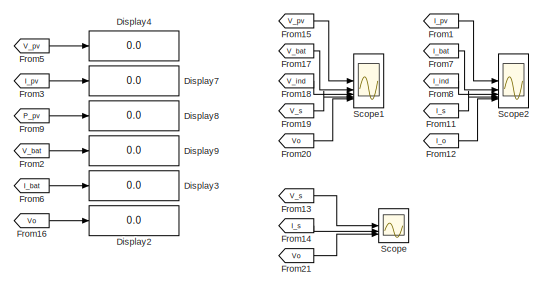
[diagram: root canvas - part 1/4, top right region]
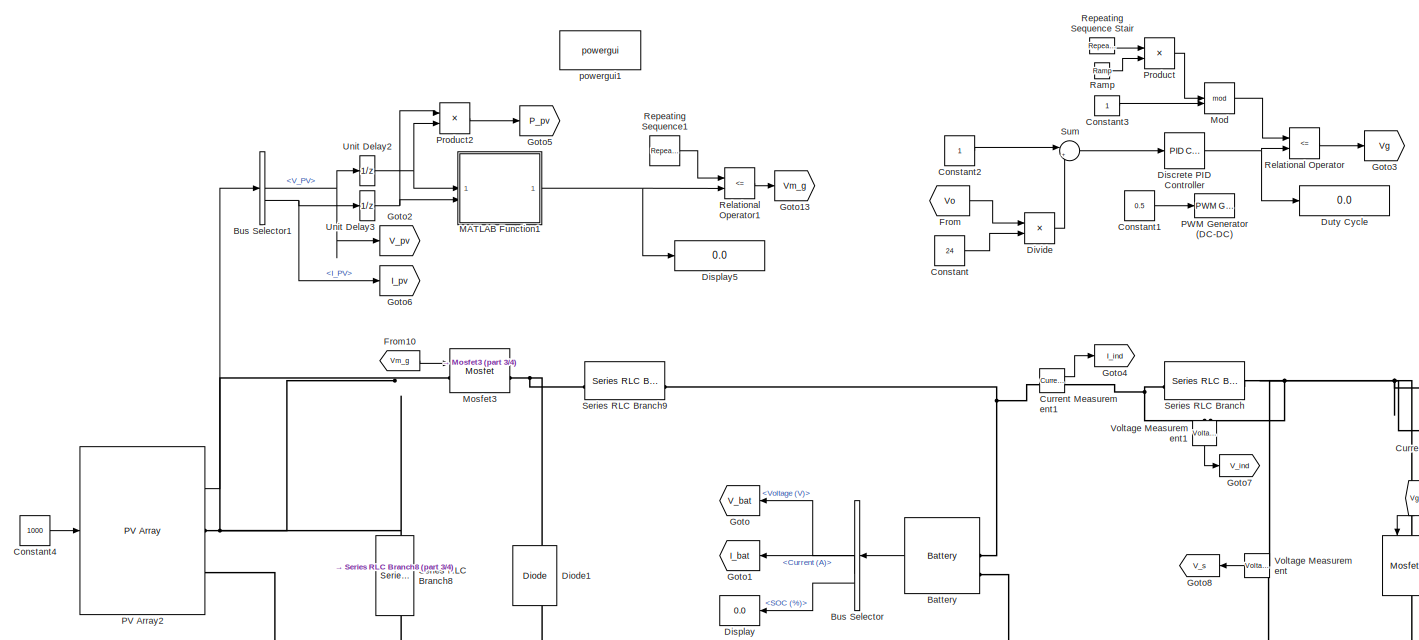
[diagram: root canvas - part 2/4, center side, full height]
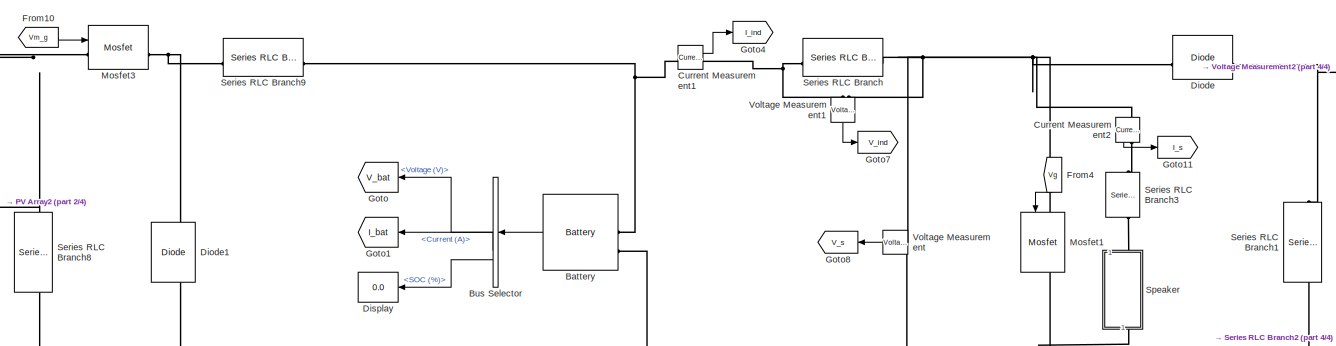
[diagram: root canvas - part 3/4, bottom center region]
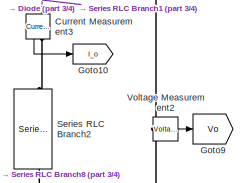
[diagram: root canvas - part 4/4, bottom right region]
MODEL slx_962ab6485103
KIND model
CONFIG AbsTol = auto
CONFIG EnableMultiTasking = off
CONFIG FixedStep = auto
CONFIG MaxStep = auto
CONFIG MinStep = auto
CONFIG RelTol = 1e-3
CONFIG SampleTimeConstraint = Unconstrained
CONFIG SolverName = VariableStepAuto
CONFIG StartTime = 0.0
CONFIG StopTime = 0.5
BLOCK [Reference] Battery  REF=spsBatteryLib/Battery
  SourceBlock = spsBatteryLib/Battery
  SourceType = Battery
BLOCK [BusSelector] Bus Selector
  NameLocation = top
  OutputSignals = Voltage (V),Current (A),SOC (%)
BLOCK [BusSelector] Bus Selector1
  OutputSignals = V_PV,I_PV
BLOCK [Constant] Constant
  Value = 24
BLOCK [Constant] Constant1
  Value = 0.5
BLOCK [Constant] Constant2
BLOCK [Constant] Constant3
  SampleTime = 1e-6
BLOCK [Constant] Constant4
  Value = 1000
BLOCK [Reference] Current Measurement1  REF=spsCurrentMeasurementLib/Current Measurement
  SourceBlock = spsCurrentMeasurementLib/Current Measurement
  SourceType = Current Measurement
  UserDataPersistent = on
BLOCK [Reference] Current Measurement2  REF=spsCurrentMeasurementLib/Current Measurement
  NameLocation = left
  SourceBlock = spsCurrentMeasurementLib/Current Measurement
  SourceType = Current Measurement
  UserDataPersistent = on
BLOCK [Reference] Current Measurement3  REF=spsCurrentMeasurementLib/Current Measurement
  NameLocation = left
  SourceBlock = spsCurrentMeasurementLib/Current Measurement
  SourceType = Current Measurement
  UserDataPersistent = on
BLOCK [Reference] Diode  REF=spsDiodeLib/Diode
  SourceBlock = spsDiodeLib/Diode
  SourceType = Diode
BLOCK [Reference] Diode1  REF=spsDiodeLib/Diode
  NameLocation = right
  SourceBlock = spsDiodeLib/Diode
  SourceType = Diode
BLOCK [Reference] Discrete PID Controller  REF=slpidlib/PID Controller
  SourceBlock = slpidlib/PID Controller
  SourceType = PID 1dof
BLOCK [Display] Display
  Decimation = 1
  NameLocation = top
BLOCK [Display] Display2
  Decimation = 1
  NameLocation = top
BLOCK [Display] Display3
  Decimation = 1
  NameLocation = top
BLOCK [Display] Display4
  Decimation = 1
  NameLocation = top
BLOCK [Display] Display5
  Decimation = 1
BLOCK [Display] Display7
  Decimation = 1
  NameLocation = top
BLOCK [Display] Display8
  Decimation = 1
  NameLocation = top
BLOCK [Display] Display9
  Decimation = 1
  NameLocation = top
BLOCK [Product] Divide
  Inputs = */
BLOCK [Display] Duty Cycle
  Decimation = 1
BLOCK [From] From
  GotoTag = Vo
BLOCK [From] From1
  GotoTag = I_pv
  NameLocation = top
BLOCK [From] From10
  GotoTag = Vm_g
BLOCK [From] From11
  GotoTag = I_s
BLOCK [From] From12
  GotoTag = I_o
BLOCK [From] From13
  GotoTag = V_s
  NameLocation = top
BLOCK [From] From14
  GotoTag = I_s
  NameLocation = top
BLOCK [From] From15
  GotoTag = V_pv
  NameLocation = top
BLOCK [From] From16
  GotoTag = Vo
  NameLocation = top
BLOCK [From] From17
  GotoTag = V_bat
  NameLocation = left
BLOCK [From] From18
  GotoTag = V_ind
BLOCK [From] From19
  GotoTag = V_s
BLOCK [From] From2
  GotoTag = V_bat
  NameLocation = top
BLOCK [From] From20
  GotoTag = Vo
BLOCK [From] From21
  GotoTag = Vo
  NameLocation = top
BLOCK [From] From3
  GotoTag = I_pv
BLOCK [From] From4
  GotoTag = Vg
  NameLocation = left
BLOCK [From] From5
  GotoTag = V_pv
  NameLocation = top
BLOCK [From] From6
  GotoTag = I_bat
  NameLocation = top
BLOCK [From] From7
  GotoTag = I_bat
  NameLocation = left
BLOCK [From] From8
  GotoTag = I_ind
BLOCK [From] From9
  GotoTag = P_pv
  NameLocation = top
BLOCK [Goto] Goto
  GotoTag = V_bat
  NameLocation = top
BLOCK [Goto] Goto1
  GotoTag = I_bat
  NameLocation = top
BLOCK [Goto] Goto10
  GotoTag = I_o
BLOCK [Goto] Goto11
  GotoTag = I_s
  NameLocation = right
BLOCK [Goto] Goto13
  GotoTag = Vm_g
BLOCK [Goto] Goto2
  GotoTag = V_pv
BLOCK [Goto] Goto3
  GotoTag = Vg
BLOCK [Goto] Goto4
  GotoTag = I_ind
  NameLocation = right
BLOCK [Goto] Goto5
  GotoTag = P_pv
BLOCK [Goto] Goto6
  GotoTag = I_pv
BLOCK [Goto] Goto7
  GotoTag = V_ind
BLOCK [Goto] Goto8
  GotoTag = V_s
  NameLocation = left
BLOCK [Goto] Goto9
  GotoTag = Vo
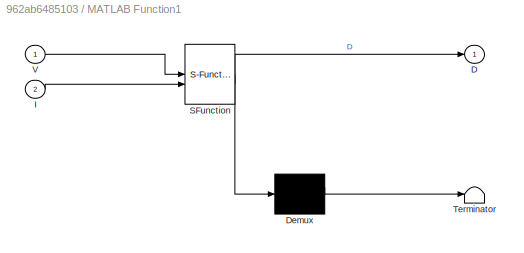
BLOCK [SubSystem] MATLAB Function1
  ErrorFcn = Stateflow.Translate.translate
  PermitHierarchicalResolution = ExplicitOnly
  SFBlockType = MATLAB Function
  TreatAsAtomicUnit = on
BLOCK [Demux] MATLAB Function1/ Demux 
  Outputs = 1
BLOCK [S-Function] MATLAB Function1/ SFunction 
  EnableBusSupport = on
  FunctionName = sf_sfun
  PortCounts = [2 2]
  SFcnIsStateOwnerBlock = off
  SFunctionDeploymentMode = off
  Tag = Stateflow S-Function 1
BLOCK [Terminator] MATLAB Function1/ Terminator 
BLOCK [Outport] MATLAB Function1/D
BLOCK [Inport] MATLAB Function1/I
  Port = 2
BLOCK [Inport] MATLAB Function1/V
BLOCK [Math] Mod
  Operator = mod
BLOCK [Reference] Mosfet1  REF=spsMosfetLib/Mosfet
  NameLocation = left
  SourceBlock = spsMosfetLib/Mosfet
  SourceType = Mosfet
BLOCK [Reference] Mosfet3  REF=spsMosfetLib/Mosfet
  SourceBlock = spsMosfetLib/Mosfet
  SourceType = Mosfet
BLOCK [Reference] PV Array2  REF=spsPVArrayLib/PV Array
  SourceBlock = spsPVArrayLib/PV Array
  SourceType = PV array
BLOCK [Reference] PWM Generator (DC-DC)  REF=spsPWMGeneratorDCDCLib/PWM Generator
(DC-DC)
  SourceBlock = spsPWMGeneratorDCDCLib/PWM Generator\n(DC-DC)
  SourceType = PWM Generator (DC-DC)
BLOCK [Product] Product
BLOCK [Product] Product2
BLOCK [Reference] Ramp  REF=simulink/Sources/Ramp
  SourceBlock = simulink/Sources/Ramp
  SourceType = Ramp
BLOCK [RelationalOperator] Relational Operator
  InputSameDT = off
  Operator = <=
  OutDataTypeStr = boolean
  RndMeth = Simplest
BLOCK [RelationalOperator] Relational Operator1
  InputSameDT = off
  Operator = <=
  OutDataTypeStr = boolean
  RndMeth = Simplest
BLOCK [Reference] Repeating Sequence Stair  REF=simulink/Sources/Repeating
Sequence
Stair
  SourceBlock = simulink/Sources/Repeating\nSequence\nStair
  SourceType = Repeating Sequence Stair
BLOCK [Reference] Repeating Sequence1  REF=simulink/Sources/Repeating
Sequence
  SourceBlock = simulink/Sources/Repeating\nSequence
  SourceType = Repeating table
BLOCK [Scope] Scope
  Floating = off
  NumInputPorts = 3
  ScopeSpecificationString = Simulink.scopes.TimeScopeBlockCfg('CurrentConfiguration', extmgr.ConfigurationSet(extmgr.Configuration('Core','General UI',true),extmgr.Configuration('Core','Source UI',true),extmgr.Configuration('Sources','WiredSimulink',true,'DataLoggingVariableName','ScopeData1'),extmgr.Configuration('Visuals','Time Domain',true,'SerializedDisplays',{struct('MinYLimReal','-6.59833','MaxYLimReal','26.14376','YLa...<+1669ch>
BLOCK [Scope] Scope1
  Floating = off
  NumInputPorts = 5
  ScopeSpecificationString = Simulink.scopes.TimeScopeBlockCfg('CurrentConfiguration', extmgr.ConfigurationSet(extmgr.Configuration('Core','General UI',true),extmgr.Configuration('Core','Source UI',true),extmgr.Configuration('Sources','WiredSimulink',true,'DataLoggingVariableName','ScopeData3'),extmgr.Configuration('Visuals','Time Domain',true,'SerializedDisplays',{struct('MinYLimReal','-17.95824','MaxYLimReal','29.88978','YL...<+1625ch>
BLOCK [Scope] Scope2
  Floating = off
  NumInputPorts = 5
  ScopeSpecificationString = Simulink.scopes.TimeScopeBlockCfg('CurrentConfiguration', extmgr.ConfigurationSet(extmgr.Configuration('Core','General UI',true),extmgr.Configuration('Core','Source UI',true),extmgr.Configuration('Sources','WiredSimulink',true),extmgr.Configuration('Visuals','Time Domain',true,'SerializedDisplays',{struct('MinYLimReal','-2.58264','MaxYLimReal','0.67267','YLabelReal','','MinYLimMag','0.00000','MaxY...<+1666ch>
BLOCK [Reference] Series RLC Branch  REF=spsSeriesRLCBranchLib/Series RLC Branch
  SourceBlock = spsSeriesRLCBranchLib/Series RLC Branch
  SourceType = Series RLC Branch
BLOCK [Reference] Series RLC Branch1  REF=spsSeriesRLCBranchLib/Series RLC Branch
  NameLocation = left
  SourceBlock = spsSeriesRLCBranchLib/Series RLC Branch
  SourceType = Series RLC Branch
BLOCK [Reference] Series RLC Branch2  REF=spsSeriesRLCBranchLib/Series RLC Branch
  NameLocation = left
  SourceBlock = spsSeriesRLCBranchLib/Series RLC Branch
  SourceType = Series RLC Branch
BLOCK [Reference] Series RLC Branch3  REF=spsSeriesRLCBranchLib/Series RLC Branch
  NameLocation = left
  SourceBlock = spsSeriesRLCBranchLib/Series RLC Branch
  SourceType = Series RLC Branch
BLOCK [Reference] Series RLC Branch8  REF=spsSeriesRLCBranchLib/Series RLC Branch
  NameLocation = left
  SourceBlock = spsSeriesRLCBranchLib/Series RLC Branch
  SourceType = Series RLC Branch
BLOCK [Reference] Series RLC Branch9  REF=spsSeriesRLCBranchLib/Series RLC Branch
  SourceBlock = spsSeriesRLCBranchLib/Series RLC Branch
  SourceType = Series RLC Branch
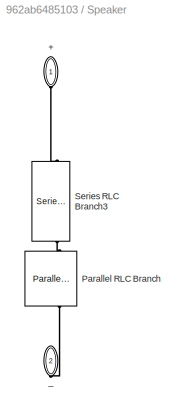
BLOCK [SubSystem] Speaker
  NameLocation = right
BLOCK [PMIOPort] Speaker/+
  NameLocation = left
  Side = Left
BLOCK [Reference] Speaker/Parallel RLC Branch  REF=spsParallelRLCBranchLib/Parallel RLC Branch
  AttributesFormatString = \n
  NameLocation = left
  SourceBlock = spsParallelRLCBranchLib/Parallel RLC Branch
  SourceType = Parallel RLC Branch
BLOCK [Reference] Speaker/Series RLC Branch3  REF=spsSeriesRLCBranchLib/Series RLC Branch
  NameLocation = left
  SourceBlock = spsSeriesRLCBranchLib/Series RLC Branch
  SourceType = Series RLC Branch
BLOCK [PMIOPort] Speaker/_
  NameLocation = left
  Port = 2
  Side = Right
BLOCK [Sum] Sum
  Inputs = |+-
BLOCK [UnitDelay] Unit Delay2
  HasFrameUpgradeWarning = on
  SampleTime = 1e-5
BLOCK [UnitDelay] Unit Delay3
  HasFrameUpgradeWarning = on
  SampleTime = 1e-5
BLOCK [Reference] Voltage Measurement  REF=spsVoltageMeasurementLib/Voltage Measurement
  NameLocation = top
  SourceBlock = spsVoltageMeasurementLib/Voltage Measurement
  SourceType = Voltage Measurement
  UserDataPersistent = on
BLOCK [Reference] Voltage Measurement1  REF=spsVoltageMeasurementLib/Voltage Measurement
  NameLocation = left
  SourceBlock = spsVoltageMeasurementLib/Voltage Measurement
  SourceType = Voltage Measurement
  UserDataPersistent = on
BLOCK [Reference] Voltage Measurement2  REF=spsVoltageMeasurementLib/Voltage Measurement
  SourceBlock = spsVoltageMeasurementLib/Voltage Measurement
  SourceType = Voltage Measurement
  UserDataPersistent = on
BLOCK [Reference] powergui1  REF=spspowerguiLib/powergui
  Priority = 1
  SourceBlock = spspowerguiLib/powergui
  SourceType = PSB option menu block
LINE Battery:1 -> Bus Selector:1
NET Bus Selector1:1 -> Goto2:1, Unit Delay2:1
NET Bus Selector1:2 -> Goto6:1, Unit Delay3:1
LINE Bus Selector:1 -> Goto:1
LINE Bus Selector:2 -> Goto1:1
LINE Bus Selector:3 -> Display:1
LINE Constant1:1 -> PWM Generator (DC-DC):1
LINE Constant2:1 -> Sum:1
LINE Constant3:1 -> Mod:2
LINE Constant4:1 -> PV Array2:1
LINE Constant:1 -> Divide:2
LINE Current Measurement1:1 -> Goto4:1
LINE Current Measurement2:1 -> Goto11:1
LINE Current Measurement3:1 -> Goto10:1
NET Discrete PID Controller:1 -> Duty Cycle:1, Relational Operator:2
LINE Divide:1 -> Sum:2
LINE From10:1 -> Mosfet3:1
LINE From11:1 -> Scope2:4
LINE From12:1 -> Scope2:5
LINE From13:1 -> Scope:1
LINE From14:1 -> Scope:2
LINE From15:1 -> Scope1:1
LINE From16:1 -> Display2:1
LINE From17:1 -> Scope1:2
LINE From18:1 -> Scope1:3
LINE From19:1 -> Scope1:4
LINE From1:1 -> Scope2:1
LINE From20:1 -> Scope1:5
LINE From21:1 -> Scope:3
LINE From2:1 -> Display9:1
LINE From3:1 -> Display7:1
LINE From4:1 -> Mosfet1:1
LINE From5:1 -> Display4:1
LINE From6:1 -> Display3:1
LINE From7:1 -> Scope2:2
LINE From8:1 -> Scope2:3
LINE From9:1 -> Display8:1
LINE From:1 -> Divide:1
NET MATLAB Function1:1 -> Display5:1, Relational Operator1:2
LINE Mod:1 -> Relational Operator:1
LINE PV Array2:1 -> Bus Selector1:1
LINE Product2:1 -> Goto5:1
LINE Product:1 -> Mod:1
LINE Ramp:1 -> Product:2
LINE Relational Operator1:1 -> Goto13:1
LINE Relational Operator:1 -> Goto3:1
LINE Repeating Sequence Stair:1 -> Product:1
LINE Repeating Sequence1:1 -> Relational Operator1:1
LINE Sum:1 -> Discrete PID Controller:1
NET Unit Delay2:1 -> MATLAB Function1:1, Product2:2
NET Unit Delay3:1 -> MATLAB Function1:2, Product2:1
LINE Voltage Measurement1:1 -> Goto7:1
LINE Voltage Measurement2:1 -> Goto9:1
LINE Voltage Measurement:1 -> Goto8:1
PNET net1: Battery:LConn1 -- Current Measurement1:LConn1 -- Series RLC Branch9:RConn1
PNET net2: Battery:LConn2 -- Diode1:LConn1 -- Mosfet1:RConn1 -- PV Array2:RConn2 -- Series RLC Branch1:RConn1 -- Series RLC Branch2:RConn1 -- Series RLC Branch8:RConn1 -- Speaker:RConn1 -- Voltage Measurement2:LConn2 -- Voltage Measurement:LConn2
PNET net3: Current Measurement1:RConn1 -- Series RLC Branch:LConn1 -- Voltage Measurement1:LConn1
PNET net4: Current Measurement2:LConn1 -- Diode:LConn1 -- Mosfet1:LConn1 -- Series RLC Branch:RConn1 -- Voltage Measurement1:LConn2 -- Voltage Measurement:LConn1
PLINE Current Measurement2:RConn1 -- Series RLC Branch3:LConn1
PNET net5: Current Measurement3:LConn1 -- Diode:RConn1 -- Series RLC Branch1:LConn1 -- Voltage Measurement2:LConn1
PLINE Current Measurement3:RConn1 -- Series RLC Branch2:LConn1
PNET net6: Diode1:RConn1 -- Mosfet3:RConn1 -- Series RLC Branch9:LConn1
PNET net7: Mosfet3:LConn1 -- PV Array2:RConn1 -- Series RLC Branch8:LConn1
PLINE Series RLC Branch3:RConn1 -- Speaker:LConn1
PLINE Speaker/+:RConn1 -- Speaker/Series RLC Branch3:LConn1
PLINE Speaker/Parallel RLC Branch:LConn1 -- Speaker/Series RLC Branch3:RConn1
PLINE Speaker/Parallel RLC Branch:RConn1 -- Speaker/_:RConn1
note: NET lines group one-source signal fan-out (src -> all destinations, sorted); 1:1 wires keep LINE; PNET lines group multi-terminal physical nets as a canonical sorted terminal list (undirected conserving connections); 2-terminal nets keep the pairwise PLINE form
CHART MATLAB Function1 states=1 transitions=1
  STATE_LABEL 'eML_blk_kernel()'
  STATE_LABEL "SCRIPT:\nfunction D = DutyRatio(V,I)\n\nDmax = 0.95;\nDmin = 0;\nDinit =0.95;\ndeltaD = 0.0001;\npersistent Vold Pold Dold;\n\ndataType = 'double';\n\nif isempty(Vold)\n    Vold = 0;\n    Pold = 0;\n    Dold = Dinit;\nend\n\nP = V*I;\ndV = V-Vold;\ndP = P-Pold;\n\nif dP ~=0\n    if dP<0\n        if dV<0\n            D = Dold - deltaD;\n        else\n            D = Dold + deltaD;\n        end\n \n    else     \n        if dV<0...<+191ch>"
CHART  states=0 transitions=0
